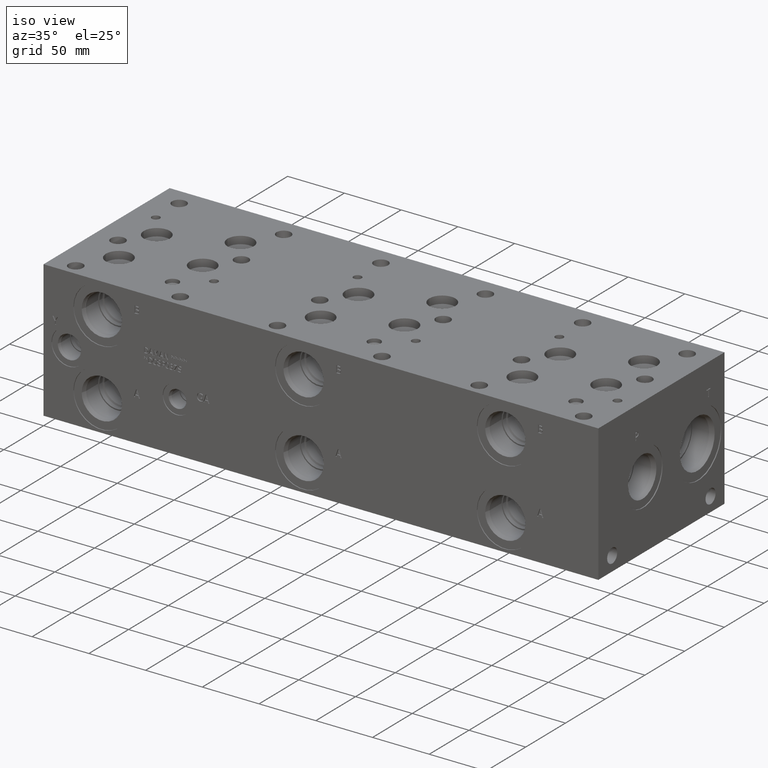
[diagram: clean part render]
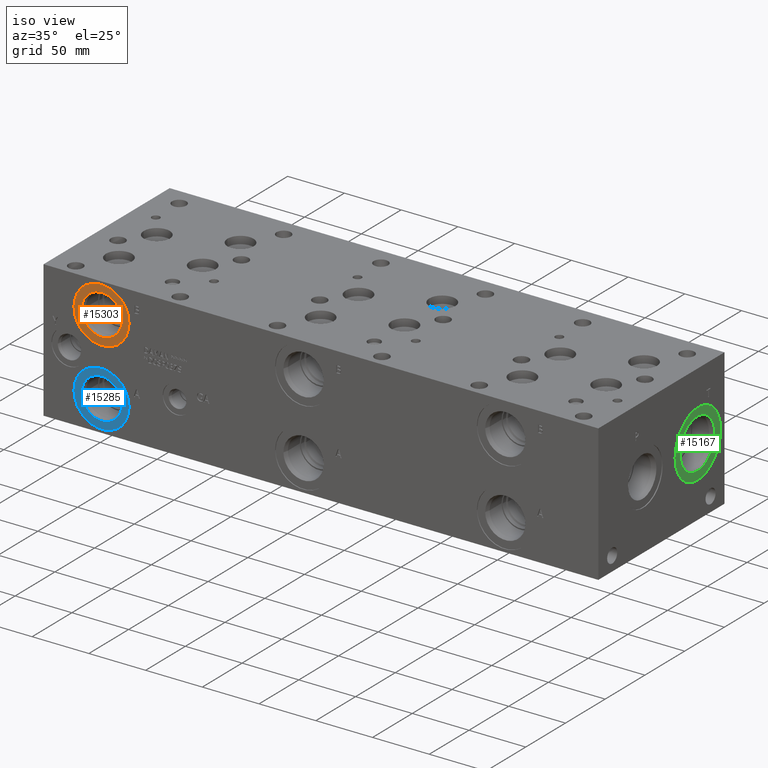
[diagram: same view with three faces highlighted in distinct colors, each labeled with its STEP entity id]
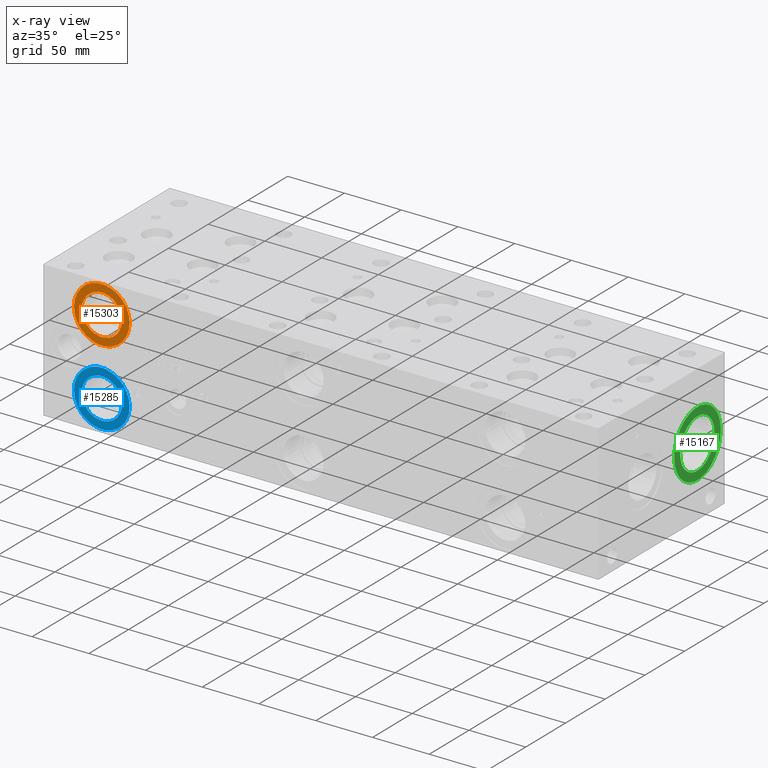
[diagram: x-ray of the same camera — body ghosted, the three highlighted faces saturated]
A machine part, iso view with three faces highlighted in distinct colors.
The next image is the same camera in x-ray (body ghosted, the three faces saturated) — at least one of them is partly hidden behind the body in this view.
Their STEP definitions:

[orange] entity #15303 — the highlighted planar face has unit normal (0, 1, 0).
#516=CIRCLE('',#16221,24.5618);
#517=CIRCLE('',#16222,24.5618);
#518=CIRCLE('',#16224,17.7546);
#519=CIRCLE('',#16225,17.7546);
#821=FACE_BOUND('',#2877,.T.);
#1256=PLANE('',#16223);
#1971=FACE_OUTER_BOUND('',#2876,.T.);
#2876=EDGE_LOOP('',(#13289,#13290));
#2877=EDGE_LOOP('',(#13291,#13292));
#7268=VERTEX_POINT('',#26118);
#7269=VERTEX_POINT('',#26120);
#7270=VERTEX_POINT('',#26124);
#7271=VERTEX_POINT('',#26125);
#9348=EDGE_CURVE('',#7268,#7269,#516,.T.);
#9349=EDGE_CURVE('',#7269,#7268,#517,.T.);
#9350=EDGE_CURVE('',#7270,#7271,#518,.T.);
#9351=EDGE_CURVE('',#7271,#7270,#519,.T.);
#13289=ORIENTED_EDGE('',*,*,#9349,.F.);
#13290=ORIENTED_EDGE('',*,*,#9348,.F.);
#13291=ORIENTED_EDGE('',*,*,#9350,.T.);
#13292=ORIENTED_EDGE('',*,*,#9351,.T.);
#15303=ADVANCED_FACE('',(#1971,#821),#1256,.F.);
#16221=AXIS2_PLACEMENT_3D('',#26121,#19338,#19339);
#16222=AXIS2_PLACEMENT_3D('',#26122,#19340,#19341);
#16223=AXIS2_PLACEMENT_3D('',#26123,#19342,#19343);
#16224=AXIS2_PLACEMENT_3D('',#26126,#19344,#19345);
#16225=AXIS2_PLACEMENT_3D('',#26127,#19346,#19347);
#19338=DIRECTION('center_axis',(0.,1.,0.));
#19339=DIRECTION('ref_axis',(1.,0.,0.));
#19340=DIRECTION('center_axis',(0.,1.,0.));
#19341=DIRECTION('ref_axis',(1.,0.,0.));
#19342=DIRECTION('center_axis',(0.,1.,0.));
#19343=DIRECTION('ref_axis',(0.,0.,1.));
#19344=DIRECTION('center_axis',(0.,1.,0.));
#19345=DIRECTION('ref_axis',(1.,0.,0.));
#19346=DIRECTION('center_axis',(0.,1.,0.));
#19347=DIRECTION('ref_axis',(1.,0.,0.));
#26118=CARTESIAN_POINT('',(26.2382,0.7874,93.6752));
#26120=CARTESIAN_POINT('',(75.3618,0.7874,93.6752));
#26121=CARTESIAN_POINT('Origin',(50.8,0.7874,93.6752));
#26122=CARTESIAN_POINT('Origin',(50.8,0.7874,93.6752));
#26123=CARTESIAN_POINT('Origin',(68.5546,0.7874,93.6752));
#26124=CARTESIAN_POINT('',(68.5546,0.7874,93.6752));
#26125=CARTESIAN_POINT('',(33.0454,0.787399999999999,93.6752));
#26126=CARTESIAN_POINT('Origin',(50.8,0.7874,93.6752));
#26127=CARTESIAN_POINT('Origin',(50.8,0.7874,93.6752));

[blue] entity #15285 — the highlighted planar face has unit normal (0, -1, 0).
#498=CIRCLE('',#16186,24.5618);
#499=CIRCLE('',#16187,24.5618);
#500=CIRCLE('',#16188,17.7546);
#817=FACE_BOUND('',#2855,.T.);
#1252=PLANE('',#16185);
#1953=FACE_OUTER_BOUND('',#2854,.T.);
#2854=EDGE_LOOP('',(#13208,#13209));
#2855=EDGE_LOOP('',(#13210));
#7247=VERTEX_POINT('',#26049);
#7248=VERTEX_POINT('',#26050);
#7249=VERTEX_POINT('',#26053);
#9316=EDGE_CURVE('',#7247,#7248,#498,.T.);
#9317=EDGE_CURVE('',#7248,#7247,#499,.T.);
#9318=EDGE_CURVE('',#7249,#7249,#500,.T.);
#13208=ORIENTED_EDGE('',*,*,#9316,.T.);
#13209=ORIENTED_EDGE('',*,*,#9317,.T.);
#13210=ORIENTED_EDGE('',*,*,#9318,.F.);
#15285=ADVANCED_FACE('',(#1953,#817),#1252,.T.);
#16185=AXIS2_PLACEMENT_3D('',#26048,#19252,#19253);
#16186=AXIS2_PLACEMENT_3D('',#26051,#19254,#19255);
#16187=AXIS2_PLACEMENT_3D('',#26052,#19256,#19257);
#16188=AXIS2_PLACEMENT_3D('',#26054,#19258,#19259);
#19252=DIRECTION('center_axis',(0.,-1.,0.));
#19253=DIRECTION('ref_axis',(1.,0.,0.));
#19254=DIRECTION('center_axis',(0.,-1.,0.));
#19255=DIRECTION('ref_axis',(1.,0.,0.));
#19256=DIRECTION('center_axis',(0.,-1.,0.));
#19257=DIRECTION('ref_axis',(1.,0.,0.));
#19258=DIRECTION('center_axis',(0.,-1.,0.));
#19259=DIRECTION('ref_axis',(1.,0.,0.));
#26048=CARTESIAN_POINT('Origin',(50.8,0.7874,26.9748));
#26049=CARTESIAN_POINT('',(75.3618,0.7874,26.9748));
#26050=CARTESIAN_POINT('',(26.2382,0.7874,26.9748));
#26051=CARTESIAN_POINT('Origin',(50.8,0.7874,26.9748));
#26052=CARTESIAN_POINT('Origin',(50.8,0.7874,26.9748));
#26053=CARTESIAN_POINT('',(33.0454,0.7874,26.9748));
#26054=CARTESIAN_POINT('Origin',(50.8,0.7874,26.9748));

[green] entity #15167 — the highlighted planar face has unit normal (1, 0, 0).
#321=CIRCLE('',#15891,29.2862);
#322=CIRCLE('',#15892,29.2862);
#323=CIRCLE('',#15893,21.7551);
#799=FACE_BOUND('',#2719,.T.);
#1234=PLANE('',#15890);
#1835=FACE_OUTER_BOUND('',#2718,.T.);
#2718=EDGE_LOOP('',(#12646,#12647));
#2719=EDGE_LOOP('',(#12648));
#7059=VERTEX_POINT('',#25466);
#7060=VERTEX_POINT('',#25467);
#7061=VERTEX_POINT('',#25470);
#9039=EDGE_CURVE('',#7059,#7060,#321,.T.);
#9040=EDGE_CURVE('',#7060,#7059,#322,.T.);
#9041=EDGE_CURVE('',#7061,#7061,#323,.T.);
#12646=ORIENTED_EDGE('',*,*,#9039,.T.);
#12647=ORIENTED_EDGE('',*,*,#9040,.T.);
#12648=ORIENTED_EDGE('',*,*,#9041,.F.);
#15167=ADVANCED_FACE('',(#1835,#799),#1234,.T.);
#15890=AXIS2_PLACEMENT_3D('',#25465,#18562,#18563);
#15891=AXIS2_PLACEMENT_3D('',#25468,#18564,#18565);
#15892=AXIS2_PLACEMENT_3D('',#25469,#18566,#18567);
#15893=AXIS2_PLACEMENT_3D('',#25471,#18568,#18569);
#18562=DIRECTION('center_axis',(1.,0.,0.));
#18563=DIRECTION('ref_axis',(0.,1.,0.));
#18564=DIRECTION('center_axis',(1.,0.,0.));
#18565=DIRECTION('ref_axis',(0.,1.,0.));
#18566=DIRECTION('center_axis',(1.,0.,0.));
#18567=DIRECTION('ref_axis',(0.,1.,0.));
#18568=DIRECTION('center_axis',(1.,0.,0.));
#18569=DIRECTION('ref_axis',(0.,1.,0.));
#25465=CARTESIAN_POINT('Origin',(488.1626,125.8316,60.325));
#25466=CARTESIAN_POINT('',(488.1626,155.1178,60.325));
#25467=CARTESIAN_POINT('',(488.1626,96.5454,60.325));
#25468=CARTESIAN_POINT('Origin',(488.1626,125.8316,60.325));
#25469=CARTESIAN_POINT('Origin',(488.1626,125.8316,60.325));
#25470=CARTESIAN_POINT('',(488.1626,104.0765,60.325));
#25471=CARTESIAN_POINT('Origin',(488.1626,125.8316,60.325));